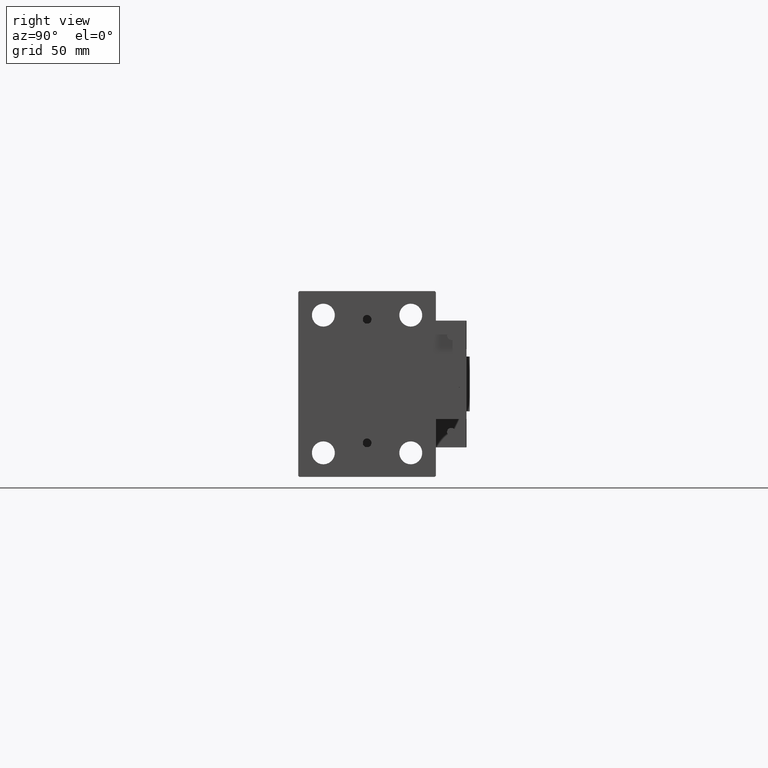
[diagram: clean part render]
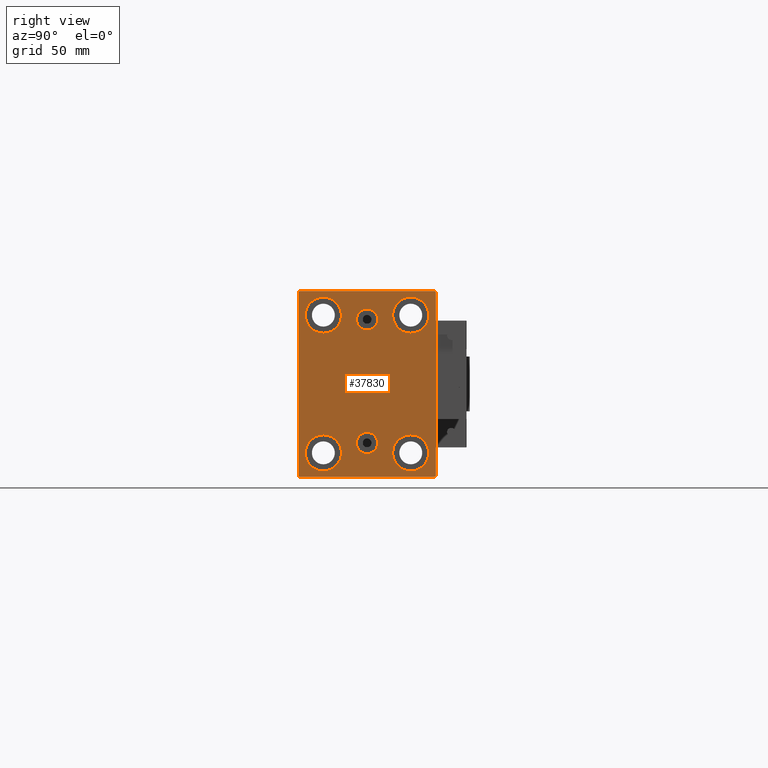
[diagram: same view with one face highlighted and labeled with its STEP entity id]
A machine part, right view. The second image highlights one B-rep face of the part: STEP entity #37830.
In plain terms, the highlighted planar face has unit normal (1, 0, 0).
Its self-contained STEP definition (entity closure, byte-faithful):
#272 = CARTESIAN_POINT ( 'NONE',  ( 213.0000000000000000, 31.50000000000001421, -42.00000000000000711 ) ) ;
#558 = DIRECTION ( 'NONE',  ( 1.000000000000000000, 0.000000000000000000, 0.000000000000000000 ) ) ;
#965 = DIRECTION ( 'NONE',  ( 0.000000000000000000, 0.000000000000000000, 1.000000000000000000 ) ) ;
#1102 = CIRCLE ( 'NONE', #39518, 8.249999999999992895 ) ;
#1119 = DIRECTION ( 'NONE',  ( -0.000000000000000000, 0.7071067811865474617, -0.7071067811865474617 ) ) ;
#1312 = FACE_BOUND ( 'NONE', #39004, .T. ) ;
#1322 = LINE ( 'NONE', #49450, #3818 ) ;
#1338 = CARTESIAN_POINT ( 'NONE',  ( 213.0000000000000000, 20.00000000000000355, 31.50000000000000000 ) ) ;
#1353 = CARTESIAN_POINT ( 'NONE',  ( 213.0000000000000000, -36.75000000000000000, 36.75000000000000000 ) ) ;
#1791 = VERTEX_POINT ( 'NONE', #38818 ) ;
#1945 = DIRECTION ( 'NONE',  ( -1.000000000000000000, -0.000000000000000000, -0.000000000000000000 ) ) ;
#2000 = DIRECTION ( 'NONE',  ( -1.000000000000000000, -0.000000000000000000, -0.000000000000000000 ) ) ;
#2218 = AXIS2_PLACEMENT_3D ( 'NONE', #45936, #43311, #27350 ) ;
#2305 = EDGE_CURVE ( 'NONE', #14012, #2490, #1322, .T. ) ;
#2360 = DIRECTION ( 'NONE',  ( 0.000000000000000000, 0.000000000000000000, 1.000000000000000000 ) ) ;
#2490 = VERTEX_POINT ( 'NONE', #23009 ) ;
#2652 = CIRCLE ( 'NONE', #42745, 8.250000000000000000 ) ;
#3011 = DIRECTION ( 'NONE',  ( -1.000000000000000000, -0.000000000000000000, -0.000000000000000000 ) ) ;
#3719 = ORIENTED_EDGE ( 'NONE', *, *, #22865, .T. ) ;
#3775 = CARTESIAN_POINT ( 'NONE',  ( 213.0000000000000000, 31.50000000000001421, -42.50000000000000711 ) ) ;
#3818 = VECTOR ( 'NONE', #20683, 1000.000000000000000 ) ;
#3952 = CIRCLE ( 'NONE', #47398, 8.249999999999992895 ) ;
#4128 = ORIENTED_EDGE ( 'NONE', *, *, #19553, .T. ) ;
#4136 = EDGE_CURVE ( 'NONE', #49790, #14012, #25435, .T. ) ;
#4244 = DIRECTION ( 'NONE',  ( -1.000000000000000000, -0.000000000000000000, -0.000000000000000000 ) ) ;
#4454 = VERTEX_POINT ( 'NONE', #30065 ) ;
#4477 = FACE_BOUND ( 'NONE', #23672, .T. ) ;
#4546 = CARTESIAN_POINT ( 'NONE',  ( 213.0000000000000000, -19.99999999999999645, 39.74999999999999289 ) ) ;
#4718 = VECTOR ( 'NONE', #1119, 1000.000000000000114 ) ;
#4918 = CARTESIAN_POINT ( 'NONE',  ( 213.0000000000000000, -31.50000000000000000, 41.99999999999999289 ) ) ;
#4991 = FACE_BOUND ( 'NONE', #6392, .T. ) ;
#5964 = CARTESIAN_POINT ( 'NONE',  ( 213.0000000000000000, -31.50000000000000000, 42.49999999999999289 ) ) ;
#6070 = ORIENTED_EDGE ( 'NONE', *, *, #4136, .T. ) ;
#6306 = AXIS2_PLACEMENT_3D ( 'NONE', #49814, #1945, #45880 ) ;
#6392 = EDGE_LOOP ( 'NONE', ( #36517, #17569 ) ) ;
#6479 = LINE ( 'NONE', #29727, #46098 ) ;
#6514 = EDGE_LOOP ( 'NONE', ( #41268, #15740 ) ) ;
#6706 = ORIENTED_EDGE ( 'NONE', *, *, #14891, .T. ) ;
#7092 = CARTESIAN_POINT ( 'NONE',  ( 213.0000000000000000, 19.99999999999999645, -31.49999999999999289 ) ) ;
#7437 = CARTESIAN_POINT ( 'NONE',  ( 213.0000000000000000, -20.00000000000000355, -23.24999999999999289 ) ) ;
#8135 = CARTESIAN_POINT ( 'NONE',  ( 213.0000000000000000, 19.99999999999999645, -39.74999999999999289 ) ) ;
#8747 = VERTEX_POINT ( 'NONE', #17785 ) ;
#9189 = AXIS2_PLACEMENT_3D ( 'NONE', #40304, #558, #19423 ) ;
#9336 = VERTEX_POINT ( 'NONE', #4546 ) ;
#9342 = DIRECTION ( 'NONE',  ( -0.000000000000000000, -0.7071067811865474617, 0.7071067811865474617 ) ) ;
#9978 = CIRCLE ( 'NONE', #45043, 8.249999999999992895 ) ;
#10201 = EDGE_CURVE ( 'NONE', #9336, #30285, #35725, .T. ) ;
#10771 = CARTESIAN_POINT ( 'NONE',  ( 213.0000000000000000, 20.00000000000000355, 23.25000000000000355 ) ) ;
#11054 = ORIENTED_EDGE ( 'NONE', *, *, #21561, .T. ) ;
#11876 = EDGE_CURVE ( 'NONE', #2490, #51046, #51469, .T. ) ;
#11970 = DIRECTION ( 'NONE',  ( -0.000000000000000000, 0.7071067811865474617, 0.7071067811865474617 ) ) ;
#12083 = VECTOR ( 'NONE', #22682, 1000.000000000000000 ) ;
#12261 = CARTESIAN_POINT ( 'NONE',  ( 213.0000000000000000, 20.00000000000000355, 39.74999999999999289 ) ) ;
#12692 = VERTEX_POINT ( 'NONE', #43851 ) ;
#13729 = VERTEX_POINT ( 'NONE', #37043 ) ;
#14012 = VERTEX_POINT ( 'NONE', #32820 ) ;
#14300 = AXIS2_PLACEMENT_3D ( 'NONE', #41227, #49099, #965 ) ;
#14620 = DIRECTION ( 'NONE',  ( 0.000000000000000000, 0.000000000000000000, 1.000000000000000000 ) ) ;
#14891 = EDGE_CURVE ( 'NONE', #33444, #27425, #9978, .T. ) ;
#15113 = EDGE_LOOP ( 'NONE', ( #30907, #20609 ) ) ;
#15475 = CIRCLE ( 'NONE', #6306, 8.250000000000000000 ) ;
#15730 = EDGE_CURVE ( 'NONE', #17932, #37489, #30875, .T. ) ;
#15740 = ORIENTED_EDGE ( 'NONE', *, *, #29008, .T. ) ;
#15805 = DIRECTION ( 'NONE',  ( 0.000000000000000000, 0.000000000000000000, 1.000000000000000000 ) ) ;
#15942 = ORIENTED_EDGE ( 'NONE', *, *, #30838, .T. ) ;
#16287 = ORIENTED_EDGE ( 'NONE', *, *, #41664, .T. ) ;
#16308 = ORIENTED_EDGE ( 'NONE', *, *, #28750, .F. ) ;
#16977 = AXIS2_PLACEMENT_3D ( 'NONE', #22623, #3011, #21845 ) ;
#17297 = DIRECTION ( 'NONE',  ( 0.000000000000000000, 0.000000000000000000, 1.000000000000000000 ) ) ;
#17569 = ORIENTED_EDGE ( 'NONE', *, *, #41284, .F. ) ;
#17598 = EDGE_CURVE ( 'NONE', #13729, #32469, #49735, .T. ) ;
#17719 = CARTESIAN_POINT ( 'NONE',  ( 213.0000000000000000, 19.99999999999999645, -23.24999999999999289 ) ) ;
#17785 = CARTESIAN_POINT ( 'NONE',  ( 213.0000000000000000, 3.306546357697852550E-15, -31.85999999999998522 ) ) ;
#17932 = VERTEX_POINT ( 'NONE', #50973 ) ;
#18189 = DIRECTION ( 'NONE',  ( 0.000000000000000000, 0.000000000000000000, 1.000000000000000000 ) ) ;
#19011 = AXIS2_PLACEMENT_3D ( 'NONE', #36199, #51652, #15805 ) ;
#19423 = DIRECTION ( 'NONE',  ( 0.000000000000000000, 0.000000000000000000, -1.000000000000000000 ) ) ;
#19553 = EDGE_CURVE ( 'NONE', #4454, #12692, #42198, .T. ) ;
#20609 = ORIENTED_EDGE ( 'NONE', *, *, #10201, .T. ) ;
#20683 = DIRECTION ( 'NONE',  ( 0.000000000000000000, 1.000000000000000000, 0.000000000000000000 ) ) ;
#20825 = CARTESIAN_POINT ( 'NONE',  ( 213.0000000000000000, 36.75000000000000711, 36.75000000000000711 ) ) ;
#21561 = EDGE_CURVE ( 'NONE', #51046, #4454, #27555, .T. ) ;
#21845 = DIRECTION ( 'NONE',  ( 0.000000000000000000, 0.000000000000000000, 1.000000000000000000 ) ) ;
#22536 = VECTOR ( 'NONE', #9342, 1000.000000000000114 ) ;
#22623 = CARTESIAN_POINT ( 'NONE',  ( 213.0000000000000000, -20.00000000000000355, -31.49999999999999289 ) ) ;
#22682 = DIRECTION ( 'NONE',  ( 0.000000000000000000, 0.000000000000000000, -1.000000000000000000 ) ) ;
#22865 = EDGE_CURVE ( 'NONE', #29688, #42956, #36756, .T. ) ;
#23009 = CARTESIAN_POINT ( 'NONE',  ( 213.0000000000000000, 31.00000000000001421, -42.50000000000000711 ) ) ;
#23279 = ORIENTED_EDGE ( 'NONE', *, *, #2305, .T. ) ;
#23632 = EDGE_CURVE ( 'NONE', #8747, #42491, #25900, .T. ) ;
#23672 = EDGE_LOOP ( 'NONE', ( #37474, #16308 ) ) ;
#23683 = CARTESIAN_POINT ( 'NONE',  ( 213.0000000000000000, -19.99999999999999645, 23.25000000000000355 ) ) ;
#24238 = ORIENTED_EDGE ( 'NONE', *, *, #46230, .T. ) ;
#24760 = CIRCLE ( 'NONE', #2218, 4.859999999999999432 ) ;
#25435 = LINE ( 'NONE', #30130, #4718 ) ;
#25900 = CIRCLE ( 'NONE', #32588, 4.859999999999995879 ) ;
#26075 = VECTOR ( 'NONE', #43521, 1000.000000000000000 ) ;
#26800 = CARTESIAN_POINT ( 'NONE',  ( 213.0000000000000000, -2.976515330312223011E-15, 34.36000000000000654 ) ) ;
#27350 = DIRECTION ( 'NONE',  ( 0.000000000000000000, 0.000000000000000000, -1.000000000000000000 ) ) ;
#27425 = VERTEX_POINT ( 'NONE', #10771 ) ;
#27555 = LINE ( 'NONE', #3775, #26075 ) ;
#28614 = ORIENTED_EDGE ( 'NONE', *, *, #37093, .T. ) ;
#28750 = EDGE_CURVE ( 'NONE', #42491, #8747, #41122, .T. ) ;
#28775 = CARTESIAN_POINT ( 'NONE',  ( 213.0000000000000000, 0.000000000000000000, 0.000000000000000000 ) ) ;
#29008 = EDGE_CURVE ( 'NONE', #42497, #1791, #2652, .T. ) ;
#29074 = DIRECTION ( 'NONE',  ( 0.000000000000000000, -0.7071067811865474617, -0.7071067811865474617 ) ) ;
#29461 = DIRECTION ( 'NONE',  ( 0.000000000000000000, 0.000000000000000000, 1.000000000000000000 ) ) ;
#29688 = VERTEX_POINT ( 'NONE', #8135 ) ;
#29727 = CARTESIAN_POINT ( 'NONE',  ( 213.0000000000000000, 31.50000000000000000, 42.50000000000000711 ) ) ;
#30065 = CARTESIAN_POINT ( 'NONE',  ( 213.0000000000000000, 31.50000000000000000, 42.00000000000000711 ) ) ;
#30130 = CARTESIAN_POINT ( 'NONE',  ( 213.0000000000000000, -36.75000000000000711, -36.75000000000000711 ) ) ;
#30285 = VERTEX_POINT ( 'NONE', #23683 ) ;
#30338 = DIRECTION ( 'NONE',  ( 1.000000000000000000, 0.000000000000000000, -0.000000000000000000 ) ) ;
#30838 = EDGE_CURVE ( 'NONE', #12692, #13729, #6479, .T. ) ;
#30875 = CIRCLE ( 'NONE', #9189, 4.859999999999999432 ) ;
#30907 = ORIENTED_EDGE ( 'NONE', *, *, #33989, .T. ) ;
#31086 = ORIENTED_EDGE ( 'NONE', *, *, #17598, .T. ) ;
#32194 = PLANE ( 'NONE',  #44704 ) ;
#32459 = DIRECTION ( 'NONE',  ( 0.000000000000000000, 0.000000000000000000, -1.000000000000000000 ) ) ;
#32469 = VERTEX_POINT ( 'NONE', #4918 ) ;
#32588 = AXIS2_PLACEMENT_3D ( 'NONE', #46820, #30338, #2360 ) ;
#32820 = CARTESIAN_POINT ( 'NONE',  ( 213.0000000000000000, -31.00000000000000000, -42.50000000000000711 ) ) ;
#33276 = CARTESIAN_POINT ( 'NONE',  ( 213.0000000000000000, -31.50000000000000000, -42.00000000000000711 ) ) ;
#33444 = VERTEX_POINT ( 'NONE', #12261 ) ;
#33989 = EDGE_CURVE ( 'NONE', #30285, #9336, #1102, .T. ) ;
#34004 = EDGE_CURVE ( 'NONE', #1791, #42497, #47071, .T. ) ;
#34718 = LINE ( 'NONE', #5964, #12083 ) ;
#35005 = CARTESIAN_POINT ( 'NONE',  ( 213.0000000000000000, 36.75000000000001421, -36.75000000000001421 ) ) ;
#35725 = CIRCLE ( 'NONE', #19011, 8.249999999999992895 ) ;
#36199 = CARTESIAN_POINT ( 'NONE',  ( 213.0000000000000000, -19.99999999999999645, 31.50000000000000000 ) ) ;
#36517 = ORIENTED_EDGE ( 'NONE', *, *, #15730, .F. ) ;
#36756 = CIRCLE ( 'NONE', #48459, 8.250000000000000000 ) ;
#36891 = DIRECTION ( 'NONE',  ( 1.000000000000000000, 0.000000000000000000, 0.000000000000000000 ) ) ;
#37043 = CARTESIAN_POINT ( 'NONE',  ( 213.0000000000000000, -31.00000000000000000, 42.49999999999999289 ) ) ;
#37093 = EDGE_CURVE ( 'NONE', #32469, #49790, #34718, .T. ) ;
#37474 = ORIENTED_EDGE ( 'NONE', *, *, #23632, .F. ) ;
#37489 = VERTEX_POINT ( 'NONE', #26800 ) ;
#37789 = DIRECTION ( 'NONE',  ( -1.000000000000000000, -0.000000000000000000, -0.000000000000000000 ) ) ;
#37830 = ADVANCED_FACE ( 'NONE', ( #4991, #4477, #1312, #41060, #44727, #40290, #48155 ), #32194, .T. ) ;
#38818 = CARTESIAN_POINT ( 'NONE',  ( 213.0000000000000000, -20.00000000000000355, -39.74999999999999289 ) ) ;
#39004 = EDGE_LOOP ( 'NONE', ( #3719, #16287 ) ) ;
#39518 = AXIS2_PLACEMENT_3D ( 'NONE', #50617, #37789, #18189 ) ;
#40290 = FACE_BOUND ( 'NONE', #6514, .T. ) ;
#40304 = CARTESIAN_POINT ( 'NONE',  ( 213.0000000000000000, -3.571693674697836683E-15, 29.50000000000001066 ) ) ;
#41060 = FACE_BOUND ( 'NONE', #15113, .T. ) ;
#41122 = CIRCLE ( 'NONE', #14300, 4.859999999999995879 ) ;
#41227 = CARTESIAN_POINT ( 'NONE',  ( 213.0000000000000000, 3.306546357697852550E-15, -26.99999999999998934 ) ) ;
#41268 = ORIENTED_EDGE ( 'NONE', *, *, #34004, .T. ) ;
#41284 = EDGE_CURVE ( 'NONE', #37489, #17932, #24760, .T. ) ;
#41494 = DIRECTION ( 'NONE',  ( 0.000000000000000000, -1.000000000000000000, -2.202823461557850341E-16 ) ) ;
#41664 = EDGE_CURVE ( 'NONE', #42956, #29688, #15475, .T. ) ;
#42198 = LINE ( 'NONE', #20825, #22536 ) ;
#42491 = VERTEX_POINT ( 'NONE', #47435 ) ;
#42497 = VERTEX_POINT ( 'NONE', #7437 ) ;
#42641 = DIRECTION ( 'NONE',  ( -1.000000000000000000, -0.000000000000000000, -0.000000000000000000 ) ) ;
#42745 = AXIS2_PLACEMENT_3D ( 'NONE', #50455, #50719, #14620 ) ;
#42956 = VERTEX_POINT ( 'NONE', #17719 ) ;
#43060 = EDGE_LOOP ( 'NONE', ( #15942, #31086, #28614, #6070, #23279, #46590, #11054, #4128 ) ) ;
#43311 = DIRECTION ( 'NONE',  ( 1.000000000000000000, 0.000000000000000000, 0.000000000000000000 ) ) ;
#43521 = DIRECTION ( 'NONE',  ( 0.000000000000000000, -1.632680918566406300E-16, 1.000000000000000000 ) ) ;
#43851 = CARTESIAN_POINT ( 'NONE',  ( 213.0000000000000000, 31.00000000000000000, 42.50000000000000711 ) ) ;
#44704 = AXIS2_PLACEMENT_3D ( 'NONE', #28775, #36891, #32459 ) ;
#44727 = FACE_BOUND ( 'NONE', #47353, .T. ) ;
#45043 = AXIS2_PLACEMENT_3D ( 'NONE', #49607, #2000, #29461 ) ;
#45157 = VECTOR ( 'NONE', #29074, 1000.000000000000114 ) ;
#45880 = DIRECTION ( 'NONE',  ( 0.000000000000000000, 0.000000000000000000, 1.000000000000000000 ) ) ;
#45936 = CARTESIAN_POINT ( 'NONE',  ( 213.0000000000000000, -3.571693674697836683E-15, 29.50000000000001066 ) ) ;
#46098 = VECTOR ( 'NONE', #41494, 1000.000000000000000 ) ;
#46230 = EDGE_CURVE ( 'NONE', #27425, #33444, #3952, .T. ) ;
#46590 = ORIENTED_EDGE ( 'NONE', *, *, #11876, .T. ) ;
#46820 = CARTESIAN_POINT ( 'NONE',  ( 213.0000000000000000, 3.306546357697852550E-15, -26.99999999999998934 ) ) ;
#47071 = CIRCLE ( 'NONE', #16977, 8.250000000000000000 ) ;
#47353 = EDGE_LOOP ( 'NONE', ( #24238, #6706 ) ) ;
#47398 = AXIS2_PLACEMENT_3D ( 'NONE', #1338, #4244, #17297 ) ;
#47435 = CARTESIAN_POINT ( 'NONE',  ( 213.0000000000000000, 3.901724702083465828E-15, -22.13999999999999346 ) ) ;
#48155 = FACE_OUTER_BOUND ( 'NONE', #43060, .T. ) ;
#48459 = AXIS2_PLACEMENT_3D ( 'NONE', #7092, #42641, #51274 ) ;
#49099 = DIRECTION ( 'NONE',  ( 1.000000000000000000, 0.000000000000000000, -0.000000000000000000 ) ) ;
#49450 = CARTESIAN_POINT ( 'NONE',  ( 213.0000000000000000, -31.50000000000000000, -42.50000000000000711 ) ) ;
#49607 = CARTESIAN_POINT ( 'NONE',  ( 213.0000000000000000, 20.00000000000000355, 31.50000000000000000 ) ) ;
#49735 = LINE ( 'NONE', #1353, #45157 ) ;
#49790 = VERTEX_POINT ( 'NONE', #33276 ) ;
#49814 = CARTESIAN_POINT ( 'NONE',  ( 213.0000000000000000, 19.99999999999999645, -31.49999999999999289 ) ) ;
#49958 = VECTOR ( 'NONE', #11970, 1000.000000000000114 ) ;
#50455 = CARTESIAN_POINT ( 'NONE',  ( 213.0000000000000000, -20.00000000000000355, -31.49999999999999289 ) ) ;
#50617 = CARTESIAN_POINT ( 'NONE',  ( 213.0000000000000000, -19.99999999999999645, 31.50000000000000000 ) ) ;
#50719 = DIRECTION ( 'NONE',  ( -1.000000000000000000, -0.000000000000000000, -0.000000000000000000 ) ) ;
#50973 = CARTESIAN_POINT ( 'NONE',  ( 213.0000000000000000, -3.571693674697836683E-15, 24.64000000000001123 ) ) ;
#51046 = VERTEX_POINT ( 'NONE', #272 ) ;
#51274 = DIRECTION ( 'NONE',  ( 0.000000000000000000, 0.000000000000000000, 1.000000000000000000 ) ) ;
#51469 = LINE ( 'NONE', #35005, #49958 ) ;
#51652 = DIRECTION ( 'NONE',  ( -1.000000000000000000, -0.000000000000000000, -0.000000000000000000 ) ) ;